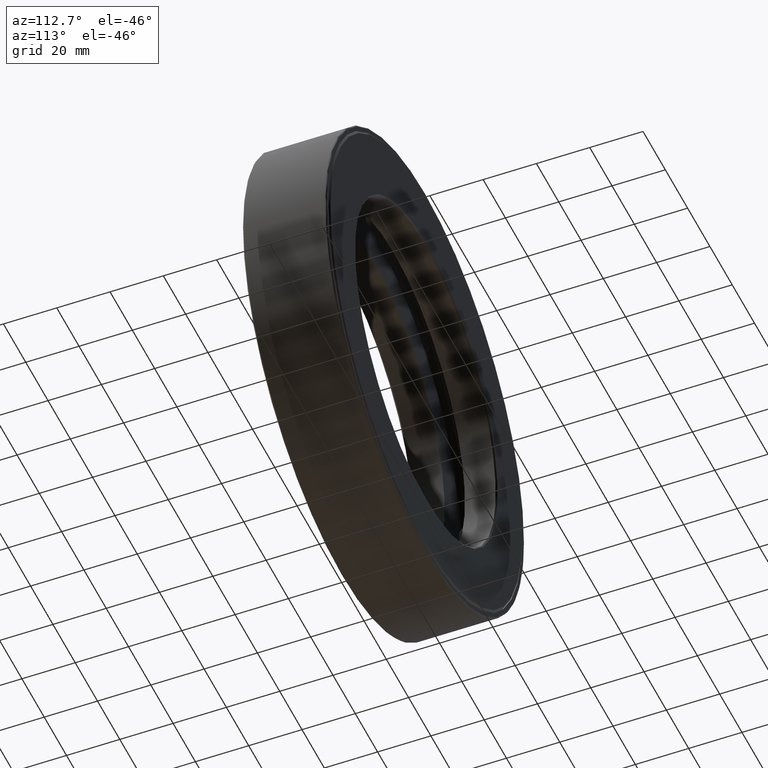
[diagram: clean part render]
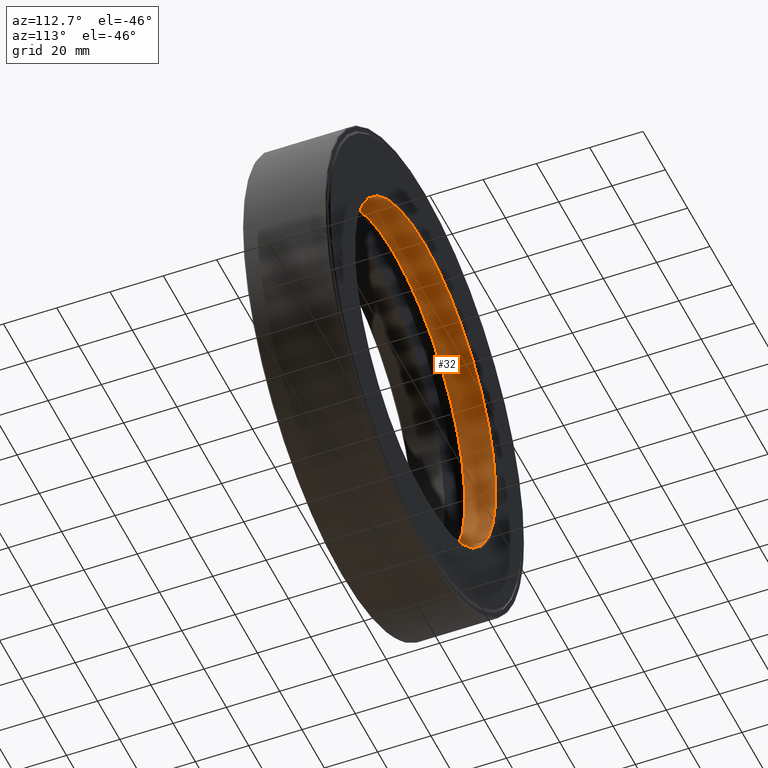
[diagram: same view with one face highlighted and labeled with its STEP entity id]
A machine part, auxiliary view. The second image highlights one B-rep face of the part: STEP entity #32.
In plain terms, the highlighted cylindrical surface (bore or boss wall) has radius 63.5 mm, axis along (-0, 1, -0).
Its self-contained STEP definition (entity closure, byte-faithful):
#2 = CARTESIAN_POINT ( 'NONE',  ( 0.0000000000000000000, 0.7749999999999998000, 2.500000000000000000 ) ) ;
#32 = ADVANCED_FACE ( 'NONE', ( #358, #486 ), #115, .F. ) ;
#51 = CIRCLE ( 'NONE', #379, 2.500000000000000000 ) ;
#59 = DIRECTION ( 'NONE',  ( -0.0000000000000000000, 1.000000000000000000, -0.0000000000000000000 ) ) ;
#94 = DIRECTION ( 'NONE',  ( -0.0000000000000000000, 1.000000000000000000, -0.0000000000000000000 ) ) ;
#109 = EDGE_LOOP ( 'NONE', ( #485 ) ) ;
#114 = CARTESIAN_POINT ( 'NONE',  ( 0.0000000000000000000, 1.230000000000000200, 0.0000000000000000000 ) ) ;
#115 = CYLINDRICAL_SURFACE ( 'NONE', #448, 2.500000000000000000 ) ;
#164 = EDGE_CURVE ( 'NONE', #384, #384, #51, .T. ) ;
#173 = DIRECTION ( 'NONE',  ( -0.0000000000000000000, 1.000000000000000000, -0.0000000000000000000 ) ) ;
#195 = EDGE_CURVE ( 'NONE', #232, #232, #317, .T. ) ;
#208 = DIRECTION ( 'NONE',  ( 0.0000000000000000000, 0.0000000000000000000, 1.000000000000000000 ) ) ;
#214 = DIRECTION ( 'NONE',  ( 0.0000000000000000000, 0.0000000000000000000, 1.000000000000000000 ) ) ;
#232 = VERTEX_POINT ( 'NONE', #2 ) ;
#235 = DIRECTION ( 'NONE',  ( 0.0000000000000000000, 0.0000000000000000000, 1.000000000000000000 ) ) ;
#282 = CARTESIAN_POINT ( 'NONE',  ( 0.0000000000000000000, 1.230000000000000200, 2.500000000000000000 ) ) ;
#317 = CIRCLE ( 'NONE', #408, 2.500000000000000000 ) ;
#358 = FACE_OUTER_BOUND ( 'NONE', #499, .T. ) ;
#361 = ORIENTED_EDGE ( 'NONE', *, *, #164, .T. ) ;
#379 = AXIS2_PLACEMENT_3D ( 'NONE', #114, #59, #208 ) ;
#384 = VERTEX_POINT ( 'NONE', #282 ) ;
#408 = AXIS2_PLACEMENT_3D ( 'NONE', #439, #173, #214 ) ;
#439 = CARTESIAN_POINT ( 'NONE',  ( 0.0000000000000000000, 0.7749999999999998000, 0.0000000000000000000 ) ) ;
#448 = AXIS2_PLACEMENT_3D ( 'NONE', #507, #94, #235 ) ;
#485 = ORIENTED_EDGE ( 'NONE', *, *, #195, .F. ) ;
#486 = FACE_OUTER_BOUND ( 'NONE', #109, .T. ) ;
#499 = EDGE_LOOP ( 'NONE', ( #361 ) ) ;
#507 = CARTESIAN_POINT ( 'NONE',  ( 0.0000000000000000000, 0.0000000000000000000, 0.0000000000000000000 ) ) ;